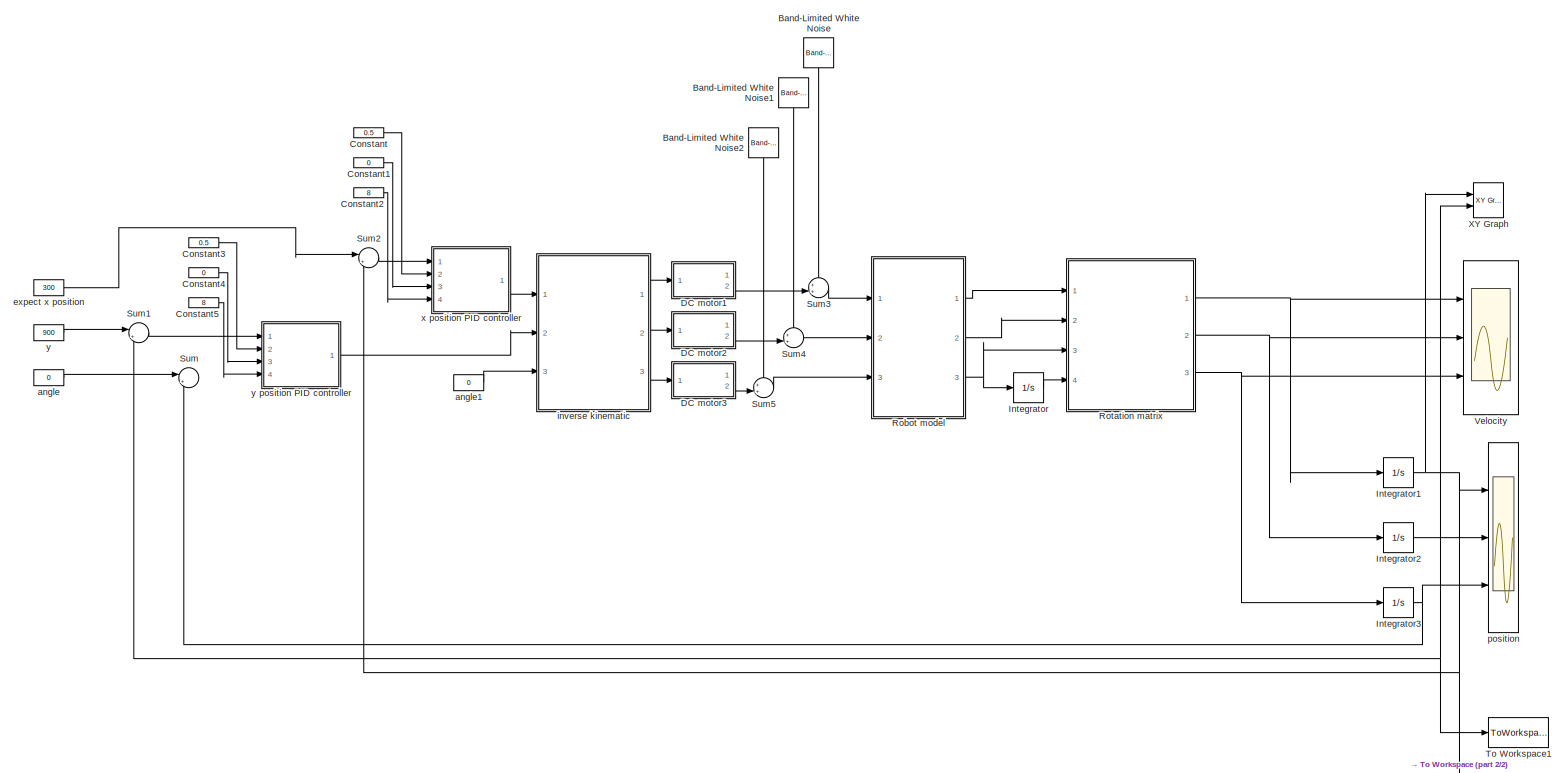
[diagram: root canvas - part 1/2, most of the canvas]
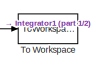
[diagram: root canvas - part 2/2, bottom right region]
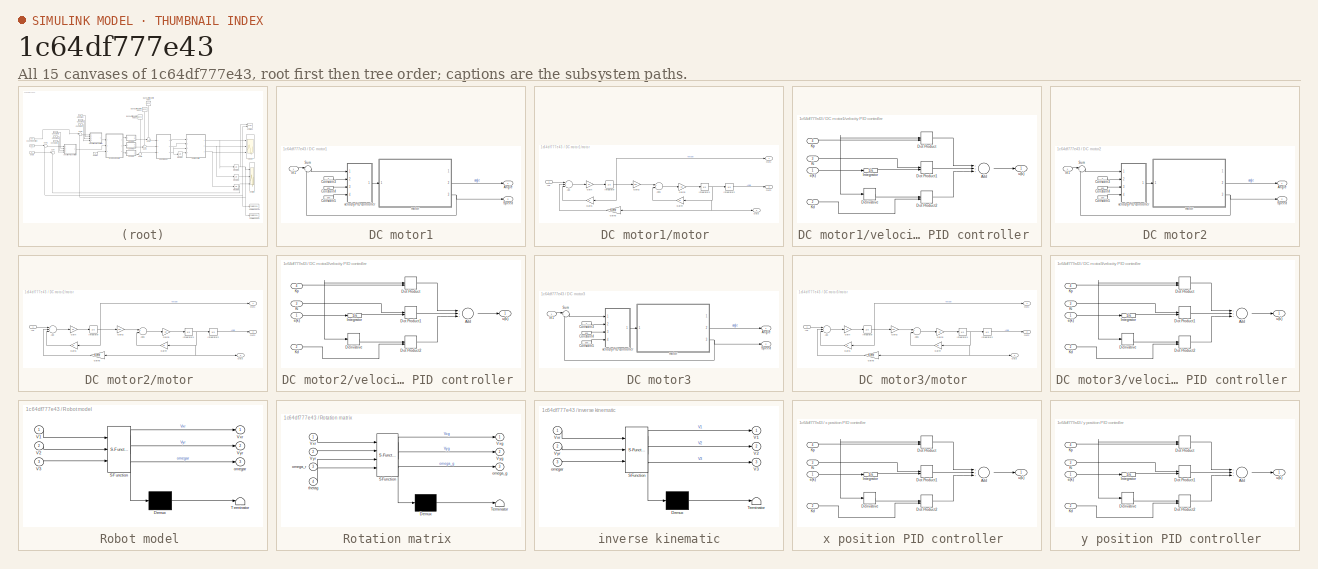
[diagram: thumbnail index - all 15 canvases of the model, root first then tree order]
MODEL slx_1c64df777e43
KIND model
CONFIG AbsTol = auto
CONFIG FixedStep = 0.001
CONFIG MaxStep = auto
CONFIG MinStep = auto
CONFIG RelTol = 1e-3
CONFIG SampleTimeConstraint = Unconstrained
CONFIG Solver = FixedStepAuto
CONFIG SolverMode = Auto
CONFIG SolverName = FixedStepAuto
CONFIG StartTime = 0.0
CONFIG StopTime = 10.0
BLOCK [Reference] Band-Limited White Noise  REF=simulink/Sources/Band-Limited
White Noise
  Ports = [0, 1]
  SourceBlock = simulink/Sources/Band-Limited\nWhite Noise
  SourceType = Band-Limited White Noise.
BLOCK [Reference] Band-Limited White Noise1  REF=simulink/Sources/Band-Limited
White Noise
  Ports = [0, 1]
  SourceBlock = simulink/Sources/Band-Limited\nWhite Noise
  SourceType = Band-Limited White Noise.
BLOCK [Reference] Band-Limited White Noise2  REF=simulink/Sources/Band-Limited
White Noise
  Ports = [0, 1]
  SourceBlock = simulink/Sources/Band-Limited\nWhite Noise
  SourceType = Band-Limited White Noise.
BLOCK [Constant] Constant
  Value = 0.5
BLOCK [Constant] Constant1
  Value = 0
BLOCK [Constant] Constant2
  Value = 8
BLOCK [Constant] Constant3
  Value = 0.5
BLOCK [Constant] Constant4
  Value = 0
BLOCK [Constant] Constant5
  Value = 8
BLOCK [SubSystem] DC motor1
  Ports = [1, 2]
  RequestExecContextInheritance = off
  Variant = off
BLOCK [Outport] DC motor1/Angle 
  IconDisplay = Port number
BLOCK [Constant] DC motor1/Constant3
  Value = 4
BLOCK [Constant] DC motor1/Constant4
  Value = 100
BLOCK [Constant] DC motor1/Constant5
  Value = 100
BLOCK [Inport] DC motor1/In1
  IconDisplay = Port number
BLOCK [Outport] DC motor1/Speed
  IconDisplay = Port number
  Port = 2
BLOCK [Sum] DC motor1/Sum
  IconShape = round
  InputSameDT = off
  Inputs = |+-
  OutDataTypeStr = Inherit: Inherit via internal rule
  Ports = [2, 1]
  SaturateOnIntegerOverflow = off
BLOCK [SubSystem] DC motor1/motor 
  Ports = [1, 3]
  RequestExecContextInheritance = off
  Variant = off
BLOCK [Sum] DC motor1/motor /Add
  InputSameDT = off
  Inputs = +--
  OutDataTypeStr = Inherit: Inherit via internal rule
  Ports = [3, 1]
  SaturateOnIntegerOverflow = off
BLOCK [Sum] DC motor1/motor /Add1
  InputSameDT = off
  Inputs = +-
  OutDataTypeStr = Inherit: Inherit via internal rule
  Ports = [2, 1]
  SaturateOnIntegerOverflow = off
BLOCK [Gain] DC motor1/motor /Gain
  Gain = 1/L
  OutDataTypeStr = Inherit: Inherit via internal rule
  ParamDataTypeStr = Inherit: Inherit via internal rule
  SaturateOnIntegerOverflow = off
BLOCK [Gain] DC motor1/motor /Gain1
  Gain = R
  OutDataTypeStr = Inherit: Inherit via internal rule
  ParamDataTypeStr = Inherit: Inherit via internal rule
  SaturateOnIntegerOverflow = off
BLOCK [Gain] DC motor1/motor /Gain2
  Gain = Km
  OutDataTypeStr = Inherit: Inherit via internal rule
  ParamDataTypeStr = Inherit: Inherit via internal rule
  SaturateOnIntegerOverflow = off
BLOCK [Gain] DC motor1/motor /Gain3
  Gain = 1/J
  OutDataTypeStr = Inherit: Inherit via internal rule
  ParamDataTypeStr = Inherit: Inherit via internal rule
  SaturateOnIntegerOverflow = off
BLOCK [Gain] DC motor1/motor /Gain4
  Gain = Kf
  OutDataTypeStr = Inherit: Inherit via internal rule
  ParamDataTypeStr = Inherit: Inherit via internal rule
  SaturateOnIntegerOverflow = off
BLOCK [Gain] DC motor1/motor /Gain5
  Gain = Kemf
  OutDataTypeStr = Inherit: Inherit via internal rule
  ParamDataTypeStr = Inherit: Inherit via internal rule
  SaturateOnIntegerOverflow = off
BLOCK [Inport] DC motor1/motor /In1
  IconDisplay = Port number
BLOCK [Integrator] DC motor1/motor /Integrator
  Ports = [1, 1]
BLOCK [Integrator] DC motor1/motor /Integrator1
  Ports = [1, 1]
BLOCK [Integrator] DC motor1/motor /Integrator2
  Ports = [1, 1]
BLOCK [Outport] DC motor1/motor /Out1
  IconDisplay = Port number
BLOCK [Outport] DC motor1/motor /Out2
  IconDisplay = Port number
  Port = 2
BLOCK [Outport] DC motor1/motor /Out3
  IconDisplay = Port number
  Port = 3
BLOCK [SubSystem] DC motor1/velocity PID controller 
  Ports = [4, 1]
  RequestExecContextInheritance = off
  Variant = off
BLOCK [Sum] DC motor1/velocity PID controller /Add
  InputSameDT = off
  Inputs = +++
  OutDataTypeStr = Inherit: Inherit via internal rule
  Ports = [3, 1]
  SaturateOnIntegerOverflow = off
BLOCK [Derivative] DC motor1/velocity PID controller /Derivative
BLOCK [DotProduct] DC motor1/velocity PID controller /Dot Product
  OutDataTypeStr = Inherit: Inherit via internal rule
BLOCK [DotProduct] DC motor1/velocity PID controller /Dot Product1
  OutDataTypeStr = Inherit: Inherit via internal rule
BLOCK [DotProduct] DC motor1/velocity PID controller /Dot Product2
  OutDataTypeStr = Inherit: Inherit via internal rule
BLOCK [Integrator] DC motor1/velocity PID controller /Integrator
  Ports = [1, 1]
BLOCK [Inport] DC motor1/velocity PID controller /Kd 
  IconDisplay = Port number
  Port = 2
BLOCK [Inport] DC motor1/velocity PID controller /Ki 
  IconDisplay = Port number
  Port = 3
BLOCK [Inport] DC motor1/velocity PID controller /Kp 
  IconDisplay = Port number
  Port = 4
BLOCK [Inport] DC motor1/velocity PID controller /e(k)
  IconDisplay = Port number
BLOCK [Outport] DC motor1/velocity PID controller /u(k)
  IconDisplay = Port number
BLOCK [SubSystem] DC motor2
  Ports = [1, 2]
  RequestExecContextInheritance = off
  Variant = off
BLOCK [Outport] DC motor2/Angle 
  IconDisplay = Port number
BLOCK [Constant] DC motor2/Constant3
  Value = 4
BLOCK [Constant] DC motor2/Constant4
  Value = 100
BLOCK [Constant] DC motor2/Constant5
  Value = 100
BLOCK [Inport] DC motor2/In1
  IconDisplay = Port number
BLOCK [Outport] DC motor2/Speed
  IconDisplay = Port number
  Port = 2
BLOCK [Sum] DC motor2/Sum
  IconShape = round
  InputSameDT = off
  Inputs = |+-
  OutDataTypeStr = Inherit: Inherit via internal rule
  Ports = [2, 1]
  SaturateOnIntegerOverflow = off
BLOCK [SubSystem] DC motor2/motor 
  Ports = [1, 3]
  RequestExecContextInheritance = off
  Variant = off
BLOCK [Sum] DC motor2/motor /Add
  InputSameDT = off
  Inputs = +--
  OutDataTypeStr = Inherit: Inherit via internal rule
  Ports = [3, 1]
  SaturateOnIntegerOverflow = off
BLOCK [Sum] DC motor2/motor /Add1
  InputSameDT = off
  Inputs = +-
  OutDataTypeStr = Inherit: Inherit via internal rule
  Ports = [2, 1]
  SaturateOnIntegerOverflow = off
BLOCK [Gain] DC motor2/motor /Gain
  Gain = 1/L
  OutDataTypeStr = Inherit: Inherit via internal rule
  ParamDataTypeStr = Inherit: Inherit via internal rule
  SaturateOnIntegerOverflow = off
BLOCK [Gain] DC motor2/motor /Gain1
  Gain = R
  OutDataTypeStr = Inherit: Inherit via internal rule
  ParamDataTypeStr = Inherit: Inherit via internal rule
  SaturateOnIntegerOverflow = off
BLOCK [Gain] DC motor2/motor /Gain2
  Gain = Km
  OutDataTypeStr = Inherit: Inherit via internal rule
  ParamDataTypeStr = Inherit: Inherit via internal rule
  SaturateOnIntegerOverflow = off
BLOCK [Gain] DC motor2/motor /Gain3
  Gain = 1/J
  OutDataTypeStr = Inherit: Inherit via internal rule
  ParamDataTypeStr = Inherit: Inherit via internal rule
  SaturateOnIntegerOverflow = off
BLOCK [Gain] DC motor2/motor /Gain4
  Gain = Kf
  OutDataTypeStr = Inherit: Inherit via internal rule
  ParamDataTypeStr = Inherit: Inherit via internal rule
  SaturateOnIntegerOverflow = off
BLOCK [Gain] DC motor2/motor /Gain5
  Gain = Kemf
  OutDataTypeStr = Inherit: Inherit via internal rule
  ParamDataTypeStr = Inherit: Inherit via internal rule
  SaturateOnIntegerOverflow = off
BLOCK [Inport] DC motor2/motor /In1
  IconDisplay = Port number
BLOCK [Integrator] DC motor2/motor /Integrator
  Ports = [1, 1]
BLOCK [Integrator] DC motor2/motor /Integrator1
  Ports = [1, 1]
BLOCK [Integrator] DC motor2/motor /Integrator2
  Ports = [1, 1]
BLOCK [Outport] DC motor2/motor /Out1
  IconDisplay = Port number
BLOCK [Outport] DC motor2/motor /Out2
  IconDisplay = Port number
  Port = 2
BLOCK [Outport] DC motor2/motor /Out3
  IconDisplay = Port number
  Port = 3
BLOCK [SubSystem] DC motor2/velocity PID controller 
  Ports = [4, 1]
  RequestExecContextInheritance = off
  Variant = off
BLOCK [Sum] DC motor2/velocity PID controller /Add
  InputSameDT = off
  Inputs = +++
  OutDataTypeStr = Inherit: Inherit via internal rule
  Ports = [3, 1]
  SaturateOnIntegerOverflow = off
BLOCK [Derivative] DC motor2/velocity PID controller /Derivative
BLOCK [DotProduct] DC motor2/velocity PID controller /Dot Product
  OutDataTypeStr = Inherit: Inherit via internal rule
BLOCK [DotProduct] DC motor2/velocity PID controller /Dot Product1
  OutDataTypeStr = Inherit: Inherit via internal rule
BLOCK [DotProduct] DC motor2/velocity PID controller /Dot Product2
  OutDataTypeStr = Inherit: Inherit via internal rule
BLOCK [Integrator] DC motor2/velocity PID controller /Integrator
  Ports = [1, 1]
BLOCK [Inport] DC motor2/velocity PID controller /Kd 
  IconDisplay = Port number
  Port = 2
BLOCK [Inport] DC motor2/velocity PID controller /Ki 
  IconDisplay = Port number
  Port = 3
BLOCK [Inport] DC motor2/velocity PID controller /Kp 
  IconDisplay = Port number
  Port = 4
BLOCK [Inport] DC motor2/velocity PID controller /e(k)
  IconDisplay = Port number
BLOCK [Outport] DC motor2/velocity PID controller /u(k)
  IconDisplay = Port number
BLOCK [SubSystem] DC motor3
  Ports = [1, 2]
  RequestExecContextInheritance = off
  Variant = off
BLOCK [Outport] DC motor3/Angle 
  IconDisplay = Port number
BLOCK [Constant] DC motor3/Constant3
  Value = 4
BLOCK [Constant] DC motor3/Constant4
  Value = 100
BLOCK [Constant] DC motor3/Constant5
  Value = 100
BLOCK [Inport] DC motor3/In1
  IconDisplay = Port number
BLOCK [Outport] DC motor3/Speed
  IconDisplay = Port number
  Port = 2
BLOCK [Sum] DC motor3/Sum
  IconShape = round
  InputSameDT = off
  Inputs = |+-
  OutDataTypeStr = Inherit: Inherit via internal rule
  Ports = [2, 1]
  SaturateOnIntegerOverflow = off
BLOCK [SubSystem] DC motor3/motor 
  Ports = [1, 3]
  RequestExecContextInheritance = off
  Variant = off
BLOCK [Sum] DC motor3/motor /Add
  InputSameDT = off
  Inputs = +--
  OutDataTypeStr = Inherit: Inherit via internal rule
  Ports = [3, 1]
  SaturateOnIntegerOverflow = off
BLOCK [Sum] DC motor3/motor /Add1
  InputSameDT = off
  Inputs = +-
  OutDataTypeStr = Inherit: Inherit via internal rule
  Ports = [2, 1]
  SaturateOnIntegerOverflow = off
BLOCK [Gain] DC motor3/motor /Gain
  Gain = 1/L
  OutDataTypeStr = Inherit: Inherit via internal rule
  ParamDataTypeStr = Inherit: Inherit via internal rule
  SaturateOnIntegerOverflow = off
BLOCK [Gain] DC motor3/motor /Gain1
  Gain = R
  OutDataTypeStr = Inherit: Inherit via internal rule
  ParamDataTypeStr = Inherit: Inherit via internal rule
  SaturateOnIntegerOverflow = off
BLOCK [Gain] DC motor3/motor /Gain2
  Gain = Km
  OutDataTypeStr = Inherit: Inherit via internal rule
  ParamDataTypeStr = Inherit: Inherit via internal rule
  SaturateOnIntegerOverflow = off
BLOCK [Gain] DC motor3/motor /Gain3
  Gain = 1/J
  OutDataTypeStr = Inherit: Inherit via internal rule
  ParamDataTypeStr = Inherit: Inherit via internal rule
  SaturateOnIntegerOverflow = off
BLOCK [Gain] DC motor3/motor /Gain4
  Gain = Kf
  OutDataTypeStr = Inherit: Inherit via internal rule
  ParamDataTypeStr = Inherit: Inherit via internal rule
  SaturateOnIntegerOverflow = off
BLOCK [Gain] DC motor3/motor /Gain5
  Gain = Kemf
  OutDataTypeStr = Inherit: Inherit via internal rule
  ParamDataTypeStr = Inherit: Inherit via internal rule
  SaturateOnIntegerOverflow = off
BLOCK [Inport] DC motor3/motor /In1
  IconDisplay = Port number
BLOCK [Integrator] DC motor3/motor /Integrator
  Ports = [1, 1]
BLOCK [Integrator] DC motor3/motor /Integrator1
  Ports = [1, 1]
BLOCK [Integrator] DC motor3/motor /Integrator2
  Ports = [1, 1]
BLOCK [Outport] DC motor3/motor /Out1
  IconDisplay = Port number
BLOCK [Outport] DC motor3/motor /Out2
  IconDisplay = Port number
  Port = 2
BLOCK [Outport] DC motor3/motor /Out3
  IconDisplay = Port number
  Port = 3
BLOCK [SubSystem] DC motor3/velocity PID controller 
  Ports = [4, 1]
  RequestExecContextInheritance = off
  Variant = off
BLOCK [Sum] DC motor3/velocity PID controller /Add
  InputSameDT = off
  Inputs = +++
  OutDataTypeStr = Inherit: Inherit via internal rule
  Ports = [3, 1]
  SaturateOnIntegerOverflow = off
BLOCK [Derivative] DC motor3/velocity PID controller /Derivative
BLOCK [DotProduct] DC motor3/velocity PID controller /Dot Product
  OutDataTypeStr = Inherit: Inherit via internal rule
BLOCK [DotProduct] DC motor3/velocity PID controller /Dot Product1
  OutDataTypeStr = Inherit: Inherit via internal rule
BLOCK [DotProduct] DC motor3/velocity PID controller /Dot Product2
  OutDataTypeStr = Inherit: Inherit via internal rule
BLOCK [Integrator] DC motor3/velocity PID controller /Integrator
  Ports = [1, 1]
BLOCK [Inport] DC motor3/velocity PID controller /Kd 
  IconDisplay = Port number
  Port = 2
BLOCK [Inport] DC motor3/velocity PID controller /Ki 
  IconDisplay = Port number
  Port = 3
BLOCK [Inport] DC motor3/velocity PID controller /Kp 
  IconDisplay = Port number
  Port = 4
BLOCK [Inport] DC motor3/velocity PID controller /e(k)
  IconDisplay = Port number
BLOCK [Outport] DC motor3/velocity PID controller /u(k)
  IconDisplay = Port number
BLOCK [Integrator] Integrator
  Ports = [1, 1]
BLOCK [Integrator] Integrator1
  Ports = [1, 1]
BLOCK [Integrator] Integrator2
  Ports = [1, 1]
BLOCK [Integrator] Integrator3
  Ports = [1, 1]
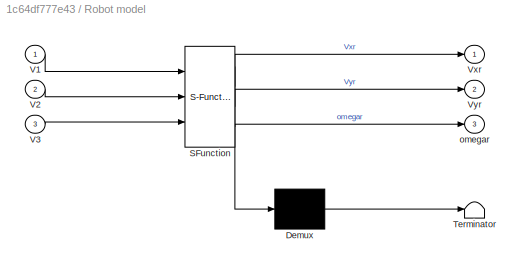
BLOCK [SubSystem] Robot model 
  ErrorFcn = Stateflow.Translate.translate
  PermitHierarchicalResolution = ExplicitOnly
  Ports = [3, 3]
  RequestExecContextInheritance = off
  SFBlockType = MATLAB Function
  TreatAsAtomicUnit = on
  Variant = off
BLOCK [Demux] Robot model / Demux 
  Outputs = 1
  Ports = [1, 1]
BLOCK [S-Function] Robot model / SFunction 
  EnableBusSupport = on
  FunctionName = sf_sfun
  PortCounts = [3 4]
  Ports = [3, 4]
  SFunctionDeploymentMode = off
  Tag = Stateflow S-Function robot_sim 4
BLOCK [Terminator] Robot model / Terminator 
BLOCK [Inport] Robot model /V1
  IconDisplay = Port number
BLOCK [Inport] Robot model /V2
  IconDisplay = Port number
  Port = 2
BLOCK [Inport] Robot model /V3
  IconDisplay = Port number
  Port = 3
BLOCK [Outport] Robot model /Vxr
  IconDisplay = Port number
BLOCK [Outport] Robot model /Vyr
  IconDisplay = Port number
  Port = 2
BLOCK [Outport] Robot model /omegar
  IconDisplay = Port number
  Port = 3
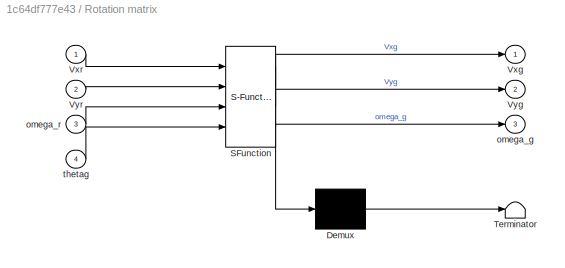
BLOCK [SubSystem] Rotation matrix 
  ErrorFcn = Stateflow.Translate.translate
  PermitHierarchicalResolution = ExplicitOnly
  Ports = [4, 3]
  RequestExecContextInheritance = off
  SFBlockType = MATLAB Function
  TreatAsAtomicUnit = on
  Variant = off
BLOCK [Demux] Rotation matrix / Demux 
  Outputs = 1
  Ports = [1, 1]
BLOCK [S-Function] Rotation matrix / SFunction 
  EnableBusSupport = on
  FunctionName = sf_sfun
  PortCounts = [4 4]
  Ports = [4, 4]
  SFunctionDeploymentMode = off
  Tag = Stateflow S-Function robot_sim 1
BLOCK [Terminator] Rotation matrix / Terminator 
BLOCK [Outport] Rotation matrix /Vxg
  IconDisplay = Port number
BLOCK [Inport] Rotation matrix /Vxr
  IconDisplay = Port number
BLOCK [Outport] Rotation matrix /Vyg
  IconDisplay = Port number
  Port = 2
BLOCK [Inport] Rotation matrix /Vyr
  IconDisplay = Port number
  Port = 2
BLOCK [Outport] Rotation matrix /omega_g
  IconDisplay = Port number
  Port = 3
BLOCK [Inport] Rotation matrix /omega_r
  IconDisplay = Port number
  Port = 3
BLOCK [Inport] Rotation matrix /thetag
  IconDisplay = Port number
  Port = 4
BLOCK [Sum] Sum
  IconShape = round
  InputSameDT = off
  Inputs = |+-
  OutDataTypeStr = Inherit: Inherit via internal rule
  Ports = [2, 1]
  SaturateOnIntegerOverflow = off
BLOCK [Sum] Sum1
  IconShape = round
  InputSameDT = off
  Inputs = |+-
  OutDataTypeStr = Inherit: Inherit via internal rule
  Ports = [2, 1]
  SaturateOnIntegerOverflow = off
BLOCK [Sum] Sum2
  IconShape = round
  InputSameDT = off
  Inputs = |+-
  OutDataTypeStr = Inherit: Inherit via internal rule
  Ports = [2, 1]
  SaturateOnIntegerOverflow = off
BLOCK [Sum] Sum3
  IconShape = round
  InputSameDT = off
  Inputs = ++|
  OutDataTypeStr = Inherit: Inherit via internal rule
  Ports = [2, 1]
  SaturateOnIntegerOverflow = off
BLOCK [Sum] Sum4
  IconShape = round
  InputSameDT = off
  Inputs = ++|
  OutDataTypeStr = Inherit: Inherit via internal rule
  Ports = [2, 1]
  SaturateOnIntegerOverflow = off
BLOCK [Sum] Sum5
  IconShape = round
  InputSameDT = off
  Inputs = ++|
  OutDataTypeStr = Inherit: Inherit via internal rule
  Ports = [2, 1]
  SaturateOnIntegerOverflow = off
BLOCK [ToWorkspace] To Workspace
  FixptAsFi = on
  MaxDataPoints = inf
  Ports = [1]
  SampleTime = -1
  Save2DSignal = 3-D array (concatenate along third dimension)
  SaveFormat = Timeseries
  VariableName = positionx
BLOCK [ToWorkspace] To Workspace1
  FixptAsFi = on
  MaxDataPoints = inf
  Ports = [1]
  SampleTime = -1
  Save2DSignal = 3-D array (concatenate along third dimension)
  SaveFormat = Timeseries
  VariableName = positiony
BLOCK [Scope] Velocity 
  NumInputPorts = 3
  Ports = [3]
  ScopeSpecificationString = Simulink.scopes.TimeScopeBlockCfg('CurrentConfiguration', extmgr.ConfigurationSet(extmgr.Configuration('Core','General UI',true),extmgr.Configuration('Core','Source UI',true),extmgr.Configuration('Sources','WiredSimulink',true),extmgr.Configuration('Visuals','Time Domain',true,'SerializedDisplays',{struct('MinYLimReal','-187.46994','MaxYLimReal','1644.91893','YLabelReal','','MinYLimMag',' 0.00000'...<+2807ch>
BLOCK [Reference] XY Graph  REF=simulink/Sinks/XY Graph
  Ports = [2]
  SourceBlock = simulink/Sinks/XY Graph
  SourceType = XY scope.
BLOCK [Constant] angle
  Value = 0
BLOCK [Constant] angle1
  Value = 0
BLOCK [Constant] expect x position 
  Value = 300
BLOCK [SubSystem] inverse kinematic
  ErrorFcn = Stateflow.Translate.translate
  PermitHierarchicalResolution = ExplicitOnly
  Ports = [3, 3]
  RequestExecContextInheritance = off
  SFBlockType = MATLAB Function
  TreatAsAtomicUnit = on
  Variant = off
BLOCK [Demux] inverse kinematic/ Demux 
  Outputs = 1
  Ports = [1, 1]
BLOCK [S-Function] inverse kinematic/ SFunction 
  EnableBusSupport = on
  FunctionName = sf_sfun
  PortCounts = [3 4]
  Ports = [3, 4]
  SFunctionDeploymentMode = off
  Tag = Stateflow S-Function robot_sim 3
BLOCK [Terminator] inverse kinematic/ Terminator 
BLOCK [Outport] inverse kinematic/V1
  IconDisplay = Port number
BLOCK [Outport] inverse kinematic/V2
  IconDisplay = Port number
  Port = 2
BLOCK [Outport] inverse kinematic/V3
  IconDisplay = Port number
  Port = 3
BLOCK [Inport] inverse kinematic/Vxr
  IconDisplay = Port number
BLOCK [Inport] inverse kinematic/Vyr
  IconDisplay = Port number
  Port = 2
BLOCK [Inport] inverse kinematic/omegar
  IconDisplay = Port number
  Port = 3
BLOCK [Scope] position 
  NumInputPorts = 3
  Ports = [3]
  ScopeSpecificationString = Simulink.scopes.TimeScopeBlockCfg('CurrentConfiguration', extmgr.ConfigurationSet(extmgr.Configuration('Core','General UI',true),extmgr.Configuration('Core','Source UI',true),extmgr.Configuration('Sources','WiredSimulink',true,'DataLoggingVariableName','position_xy','DataLoggingSaveFormat','Array'),extmgr.Configuration('Visuals','Time Domain',true,'SerializedDisplays',{struct('MinYLimReal','-38.02...<+2799ch>
BLOCK [SubSystem] x position PID controller 
  Ports = [4, 1]
  RequestExecContextInheritance = off
  Variant = off
BLOCK [Sum] x position PID controller /Add
  InputSameDT = off
  Inputs = +++
  OutDataTypeStr = Inherit: Inherit via internal rule
  Ports = [3, 1]
  SaturateOnIntegerOverflow = off
BLOCK [Derivative] x position PID controller /Derivative
BLOCK [DotProduct] x position PID controller /Dot Product
  OutDataTypeStr = Inherit: Inherit via internal rule
BLOCK [DotProduct] x position PID controller /Dot Product1
  OutDataTypeStr = Inherit: Inherit via internal rule
BLOCK [DotProduct] x position PID controller /Dot Product2
  OutDataTypeStr = Inherit: Inherit via internal rule
BLOCK [Integrator] x position PID controller /Integrator
  Ports = [1, 1]
BLOCK [Inport] x position PID controller /Kd 
  IconDisplay = Port number
  Port = 2
BLOCK [Inport] x position PID controller /Ki 
  IconDisplay = Port number
  Port = 3
BLOCK [Inport] x position PID controller /Kp 
  IconDisplay = Port number
  Port = 4
BLOCK [Inport] x position PID controller /e(k)
  IconDisplay = Port number
BLOCK [Outport] x position PID controller /u(k)
  IconDisplay = Port number
BLOCK [Constant] y
  Value = 900
BLOCK [SubSystem] y position PID controller 
  Ports = [4, 1]
  RequestExecContextInheritance = off
  Variant = off
BLOCK [Sum] y position PID controller /Add
  InputSameDT = off
  Inputs = +++
  OutDataTypeStr = Inherit: Inherit via internal rule
  Ports = [3, 1]
  SaturateOnIntegerOverflow = off
BLOCK [Derivative] y position PID controller /Derivative
BLOCK [DotProduct] y position PID controller /Dot Product
  OutDataTypeStr = Inherit: Inherit via internal rule
BLOCK [DotProduct] y position PID controller /Dot Product1
  OutDataTypeStr = Inherit: Inherit via internal rule
BLOCK [DotProduct] y position PID controller /Dot Product2
  OutDataTypeStr = Inherit: Inherit via internal rule
BLOCK [Integrator] y position PID controller /Integrator
  Ports = [1, 1]
BLOCK [Inport] y position PID controller /Kd 
  IconDisplay = Port number
  Port = 2
BLOCK [Inport] y position PID controller /Ki 
  IconDisplay = Port number
  Port = 3
BLOCK [Inport] y position PID controller /Kp 
  IconDisplay = Port number
  Port = 4
BLOCK [Inport] y position PID controller /e(k)
  IconDisplay = Port number
BLOCK [Outport] y position PID controller /u(k)
  IconDisplay = Port number
LINE Band-Limited White Noise1:1 -> Sum4:1
LINE Band-Limited White Noise2:1 -> Sum5:1
LINE Band-Limited White Noise:1 -> Sum3:1
LINE Constant1:1 -> x position PID controller :3
LINE Constant2:1 -> x position PID controller :4
LINE Constant3:1 -> y position PID controller :2
LINE Constant4:1 -> y position PID controller :3
LINE Constant5:1 -> y position PID controller :4
LINE Constant:1 -> x position PID controller :2
LINE DC motor1/Constant3:1 -> DC motor1/velocity PID controller :2
LINE DC motor1/Constant4:1 -> DC motor1/velocity PID controller :3
LINE DC motor1/Constant5:1 -> DC motor1/velocity PID controller :4
LINE DC motor1/In1:1 -> DC motor1/Sum:1
LINE DC motor1/Sum:1 -> DC motor1/velocity PID controller :1
LINE DC motor1/motor /Add1:1 -> DC motor1/motor /Gain3:1
LINE DC motor1/motor /Add:1 -> DC motor1/motor /Gain:1
LINE DC motor1/motor /Gain1:1 -> DC motor1/motor /Add:3
LINE DC motor1/motor /Gain2:1 -> DC motor1/motor /Add1:1
LINE DC motor1/motor /Gain3:1 -> DC motor1/motor /Integrator1:1
LINE DC motor1/motor /Gain4:1 -> DC motor1/motor /Add1:2
LINE DC motor1/motor /Gain5:1 -> DC motor1/motor /Add:2
LINE DC motor1/motor /Gain:1 -> DC motor1/motor /Integrator:1
LINE DC motor1/motor /In1:1 -> DC motor1/motor /Add:1
NET DC motor1/motor /Integrator1:1 -> DC motor1/motor /Gain4:1, DC motor1/motor /Gain5:1, DC motor1/motor /Integrator2:1, DC motor1/motor /Out3:1
LINE DC motor1/motor /Integrator2:1 -> DC motor1/motor /Out2:1
NET DC motor1/motor /Integrator:1 -> DC motor1/motor /Gain1:1, DC motor1/motor /Gain2:1, DC motor1/motor /Out1:1
LINE DC motor1/motor :2 -> DC motor1/Angle :1
NET DC motor1/motor :3 -> DC motor1/Speed:1, DC motor1/Sum:2
LINE DC motor1/velocity PID controller /Add:1 -> DC motor1/velocity PID controller /u(k):1
LINE DC motor1/velocity PID controller /Derivative:1 -> DC motor1/velocity PID controller /Dot Product2:1
LINE DC motor1/velocity PID controller /Dot Product1:1 -> DC motor1/velocity PID controller /Add:2
LINE DC motor1/velocity PID controller /Dot Product2:1 -> DC motor1/velocity PID controller /Add:3
LINE DC motor1/velocity PID controller /Dot Product:1 -> DC motor1/velocity PID controller /Add:1
LINE DC motor1/velocity PID controller /Integrator:1 -> DC motor1/velocity PID controller /Dot Product1:2
LINE DC motor1/velocity PID controller /Kd :1 -> DC motor1/velocity PID controller /Dot Product2:2
LINE DC motor1/velocity PID controller /Ki :1 -> DC motor1/velocity PID controller /Dot Product1:1
LINE DC motor1/velocity PID controller /Kp :1 -> DC motor1/velocity PID controller /Dot Product:2
NET DC motor1/velocity PID controller /e(k):1 -> DC motor1/velocity PID controller /Derivative:1, DC motor1/velocity PID controller /Dot Product:1, DC motor1/velocity PID controller /Integrator:1
LINE DC motor1/velocity PID controller :1 -> DC motor1/motor :1
LINE DC motor1:2 -> Sum3:2
LINE DC motor2/Constant3:1 -> DC motor2/velocity PID controller :2
LINE DC motor2/Constant4:1 -> DC motor2/velocity PID controller :3
LINE DC motor2/Constant5:1 -> DC motor2/velocity PID controller :4
LINE DC motor2/In1:1 -> DC motor2/Sum:1
LINE DC motor2/Sum:1 -> DC motor2/velocity PID controller :1
LINE DC motor2/motor /Add1:1 -> DC motor2/motor /Gain3:1
LINE DC motor2/motor /Add:1 -> DC motor2/motor /Gain:1
LINE DC motor2/motor /Gain1:1 -> DC motor2/motor /Add:3
LINE DC motor2/motor /Gain2:1 -> DC motor2/motor /Add1:1
LINE DC motor2/motor /Gain3:1 -> DC motor2/motor /Integrator1:1
LINE DC motor2/motor /Gain4:1 -> DC motor2/motor /Add1:2
LINE DC motor2/motor /Gain5:1 -> DC motor2/motor /Add:2
LINE DC motor2/motor /Gain:1 -> DC motor2/motor /Integrator:1
LINE DC motor2/motor /In1:1 -> DC motor2/motor /Add:1
NET DC motor2/motor /Integrator1:1 -> DC motor2/motor /Gain4:1, DC motor2/motor /Gain5:1, DC motor2/motor /Integrator2:1, DC motor2/motor /Out3:1
LINE DC motor2/motor /Integrator2:1 -> DC motor2/motor /Out2:1
NET DC motor2/motor /Integrator:1 -> DC motor2/motor /Gain1:1, DC motor2/motor /Gain2:1, DC motor2/motor /Out1:1
LINE DC motor2/motor :2 -> DC motor2/Angle :1
NET DC motor2/motor :3 -> DC motor2/Speed:1, DC motor2/Sum:2
LINE DC motor2/velocity PID controller /Add:1 -> DC motor2/velocity PID controller /u(k):1
LINE DC motor2/velocity PID controller /Derivative:1 -> DC motor2/velocity PID controller /Dot Product2:1
LINE DC motor2/velocity PID controller /Dot Product1:1 -> DC motor2/velocity PID controller /Add:2
LINE DC motor2/velocity PID controller /Dot Product2:1 -> DC motor2/velocity PID controller /Add:3
LINE DC motor2/velocity PID controller /Dot Product:1 -> DC motor2/velocity PID controller /Add:1
LINE DC motor2/velocity PID controller /Integrator:1 -> DC motor2/velocity PID controller /Dot Product1:2
LINE DC motor2/velocity PID controller /Kd :1 -> DC motor2/velocity PID controller /Dot Product2:2
LINE DC motor2/velocity PID controller /Ki :1 -> DC motor2/velocity PID controller /Dot Product1:1
LINE DC motor2/velocity PID controller /Kp :1 -> DC motor2/velocity PID controller /Dot Product:2
NET DC motor2/velocity PID controller /e(k):1 -> DC motor2/velocity PID controller /Derivative:1, DC motor2/velocity PID controller /Dot Product:1, DC motor2/velocity PID controller /Integrator:1
LINE DC motor2/velocity PID controller :1 -> DC motor2/motor :1
LINE DC motor2:2 -> Sum4:2
LINE DC motor3/Constant3:1 -> DC motor3/velocity PID controller :2
LINE DC motor3/Constant4:1 -> DC motor3/velocity PID controller :3
LINE DC motor3/Constant5:1 -> DC motor3/velocity PID controller :4
LINE DC motor3/In1:1 -> DC motor3/Sum:1
LINE DC motor3/Sum:1 -> DC motor3/velocity PID controller :1
LINE DC motor3/motor /Add1:1 -> DC motor3/motor /Gain3:1
LINE DC motor3/motor /Add:1 -> DC motor3/motor /Gain:1
LINE DC motor3/motor /Gain1:1 -> DC motor3/motor /Add:3
LINE DC motor3/motor /Gain2:1 -> DC motor3/motor /Add1:1
LINE DC motor3/motor /Gain3:1 -> DC motor3/motor /Integrator1:1
LINE DC motor3/motor /Gain4:1 -> DC motor3/motor /Add1:2
LINE DC motor3/motor /Gain5:1 -> DC motor3/motor /Add:2
LINE DC motor3/motor /Gain:1 -> DC motor3/motor /Integrator:1
LINE DC motor3/motor /In1:1 -> DC motor3/motor /Add:1
NET DC motor3/motor /Integrator1:1 -> DC motor3/motor /Gain4:1, DC motor3/motor /Gain5:1, DC motor3/motor /Integrator2:1, DC motor3/motor /Out3:1
LINE DC motor3/motor /Integrator2:1 -> DC motor3/motor /Out2:1
NET DC motor3/motor /Integrator:1 -> DC motor3/motor /Gain1:1, DC motor3/motor /Gain2:1, DC motor3/motor /Out1:1
LINE DC motor3/motor :2 -> DC motor3/Angle :1
NET DC motor3/motor :3 -> DC motor3/Speed:1, DC motor3/Sum:2
LINE DC motor3/velocity PID controller /Add:1 -> DC motor3/velocity PID controller /u(k):1
LINE DC motor3/velocity PID controller /Derivative:1 -> DC motor3/velocity PID controller /Dot Product2:1
LINE DC motor3/velocity PID controller /Dot Product1:1 -> DC motor3/velocity PID controller /Add:2
LINE DC motor3/velocity PID controller /Dot Product2:1 -> DC motor3/velocity PID controller /Add:3
LINE DC motor3/velocity PID controller /Dot Product:1 -> DC motor3/velocity PID controller /Add:1
LINE DC motor3/velocity PID controller /Integrator:1 -> DC motor3/velocity PID controller /Dot Product1:2
LINE DC motor3/velocity PID controller /Kd :1 -> DC motor3/velocity PID controller /Dot Product2:2
LINE DC motor3/velocity PID controller /Ki :1 -> DC motor3/velocity PID controller /Dot Product1:1
LINE DC motor3/velocity PID controller /Kp :1 -> DC motor3/velocity PID controller /Dot Product:2
NET DC motor3/velocity PID controller /e(k):1 -> DC motor3/velocity PID controller /Derivative:1, DC motor3/velocity PID controller /Dot Product:1, DC motor3/velocity PID controller /Integrator:1
LINE DC motor3/velocity PID controller :1 -> DC motor3/motor :1
LINE DC motor3:2 -> Sum5:2
NET Integrator1:1 -> Sum2:2, To Workspace:1, XY Graph:1, position :1
NET Integrator2:1 -> Sum1:2, To Workspace1:1, XY Graph:2, position :2
NET Integrator3:1 -> Sum:2, position :3
LINE Integrator:1 -> Rotation matrix :4
LINE Robot model :1 -> Rotation matrix :1
LINE Robot model :2 -> Rotation matrix :2
NET Robot model :3 -> Integrator:1, Rotation matrix :3
NET Rotation matrix :1 -> Integrator1:1, Velocity :1
NET Rotation matrix :2 -> Integrator2:1, Velocity :2
NET Rotation matrix :3 -> Integrator3:1, Velocity :3
LINE Sum1:1 -> y position PID controller :1
LINE Sum2:1 -> x position PID controller :1
LINE Sum3:1 -> Robot model :1
LINE Sum4:1 -> Robot model :2
LINE Sum5:1 -> Robot model :3
LINE angle1:1 -> inverse kinematic:3
LINE angle:1 -> Sum:1
LINE expect x position :1 -> Sum2:1
LINE inverse kinematic:1 -> DC motor1:1
LINE inverse kinematic:2 -> DC motor2:1
LINE inverse kinematic:3 -> DC motor3:1
LINE x position PID controller /Add:1 -> x position PID controller /u(k):1
LINE x position PID controller /Derivative:1 -> x position PID controller /Dot Product2:1
LINE x position PID controller /Dot Product1:1 -> x position PID controller /Add:2
LINE x position PID controller /Dot Product2:1 -> x position PID controller /Add:3
LINE x position PID controller /Dot Product:1 -> x position PID controller /Add:1
LINE x position PID controller /Integrator:1 -> x position PID controller /Dot Product1:2
LINE x position PID controller /Kd :1 -> x position PID controller /Dot Product2:2
LINE x position PID controller /Ki :1 -> x position PID controller /Dot Product1:1
LINE x position PID controller /Kp :1 -> x position PID controller /Dot Product:2
NET x position PID controller /e(k):1 -> x position PID controller /Derivative:1, x position PID controller /Dot Product:1, x position PID controller /Integrator:1
LINE x position PID controller :1 -> inverse kinematic:1
LINE y position PID controller /Add:1 -> y position PID controller /u(k):1
LINE y position PID controller /Derivative:1 -> y position PID controller /Dot Product2:1
LINE y position PID controller /Dot Product1:1 -> y position PID controller /Add:2
LINE y position PID controller /Dot Product2:1 -> y position PID controller /Add:3
LINE y position PID controller /Dot Product:1 -> y position PID controller /Add:1
LINE y position PID controller /Integrator:1 -> y position PID controller /Dot Product1:2
LINE y position PID controller /Kd :1 -> y position PID controller /Dot Product2:2
LINE y position PID controller /Ki :1 -> y position PID controller /Dot Product1:1
LINE y position PID controller /Kp :1 -> y position PID controller /Dot Product:2
NET y position PID controller /e(k):1 -> y position PID controller /Derivative:1, y position PID controller /Dot Product:1, y position PID controller /Integrator:1
LINE y position PID controller :1 -> inverse kinematic:2
LINE y:1 -> Sum1:1
note: NET lines group one-source signal fan-out (src -> all destinations, sorted); 1:1 wires keep LINE
CHART Rotation matrix
 states=1 transitions=1
  STATE_LABEL 'eML_blk_kernel()'
  STATE_LABEL 'SCRIPT:\nfunction [Vxg,Vyg,omega_g] = Rotation(Vxr,Vyr,omega_r,thetag)\n%#codegen\n\nrotation_matrix = [cos(thetag) sin(thetag) 0\n                  -sin(thetag) cos(thetag) 0\n                   0           0           1];\nout = rotation_matrix*[Vxr;Vyr;omega_r];\nVxg = out(1);\nVyg = out(2);\nomega_g = out(3);'
CHART inverse kinematic states=1 transitions=1
  STATE_LABEL 'eML_blk_kernel()'
  STATE_LABEL 'SCRIPT:\nfunction [V1,V2,V3] = inverse_kinematic(Vxr,Vyr,omegar)\n\nL = 120;\nTransform_matrix = [-sqrt(3)/2 sqrt(3)/2  L;\n                     1             0      L;\n                    -0.5       -sqrt(3)/2 L];\ninput = [Vxr;Vyr;omegar];\noutput = Transform_matrix*input;\nV1 = output(1);\nV2 = output(2);\nV3 = output(3);\n'
CHART Robot model
 states=1 transitions=1
  STATE_LABEL 'eML_blk_kernel()'
  STATE_LABEL 'SCRIPT:\nfunction [Vxr,Vyr,omegar] = Robot(V1,V2,V3)\n%#codegen\n%% constant\nL=120;\n%% \nTransform_matrix =  [    -(2*3^(1/2))/(5*3^(1/2) + 3),       (4*3^(1/2))/(5*3^(1/2) + 3),       -(2*3^(1/2))/(5*3^(1/2) + 3);\n                           6/(5*3^(1/2) + 3), (2*(3^(1/2) - 1))/(5*3^(1/2) + 3), -(2*(3^(1/2) + 2))/(5*3^(1/2) + 3);\n                        (2*3^(1/2))/(3*L + 5*3^(1/2)*L), (3^(1/2) + 3)/(...<+157ch>'
